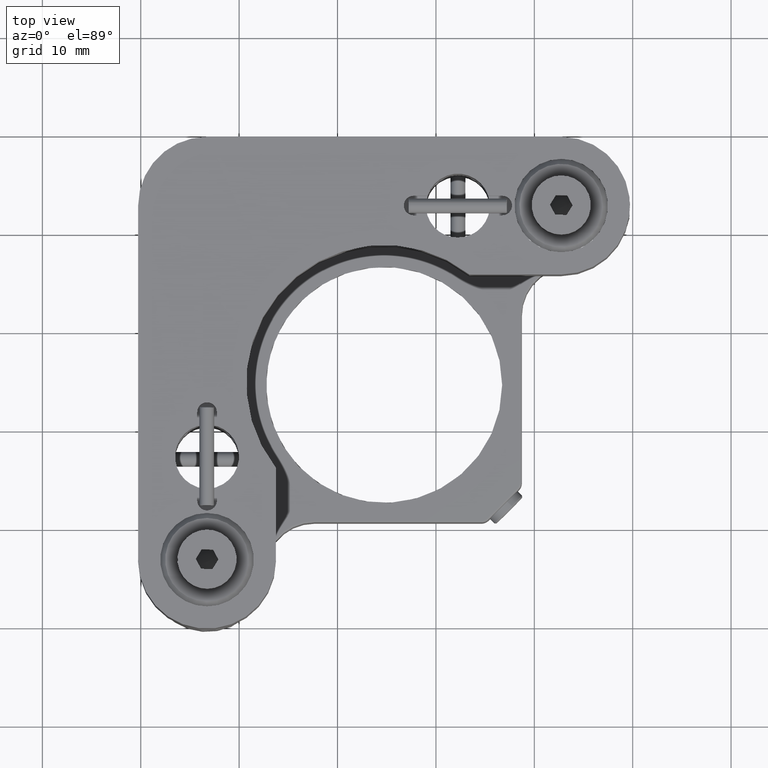
[diagram: clean part render]
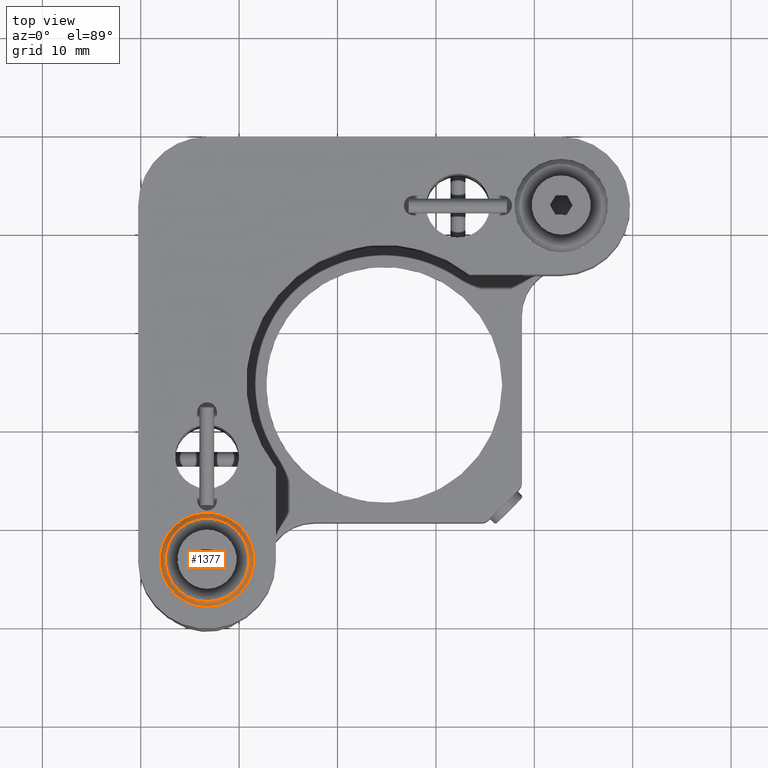
[diagram: same view with one face highlighted and labeled with its STEP entity id]
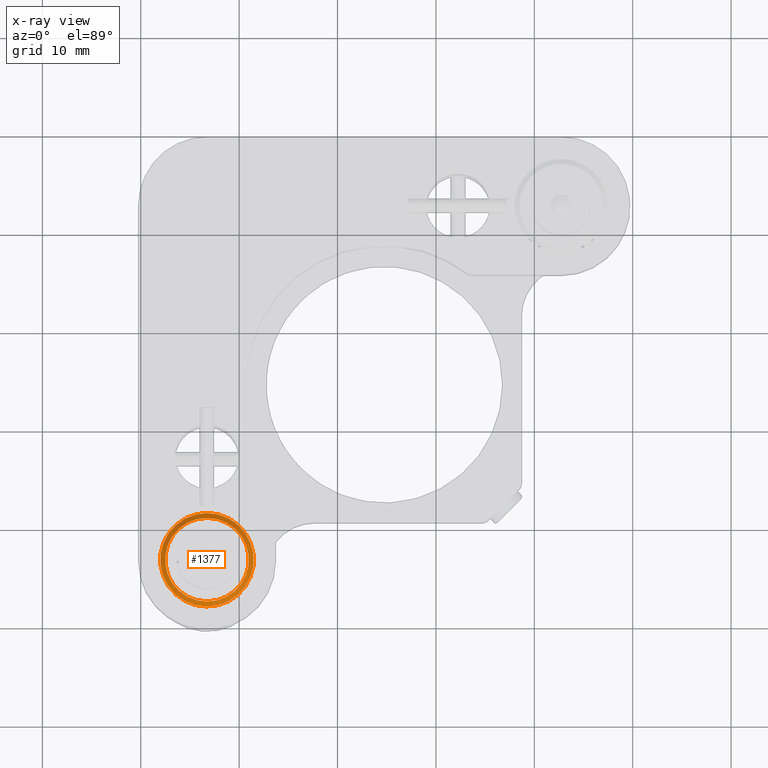
[diagram: x-ray of the same camera — body ghosted, the highlighted face saturated]
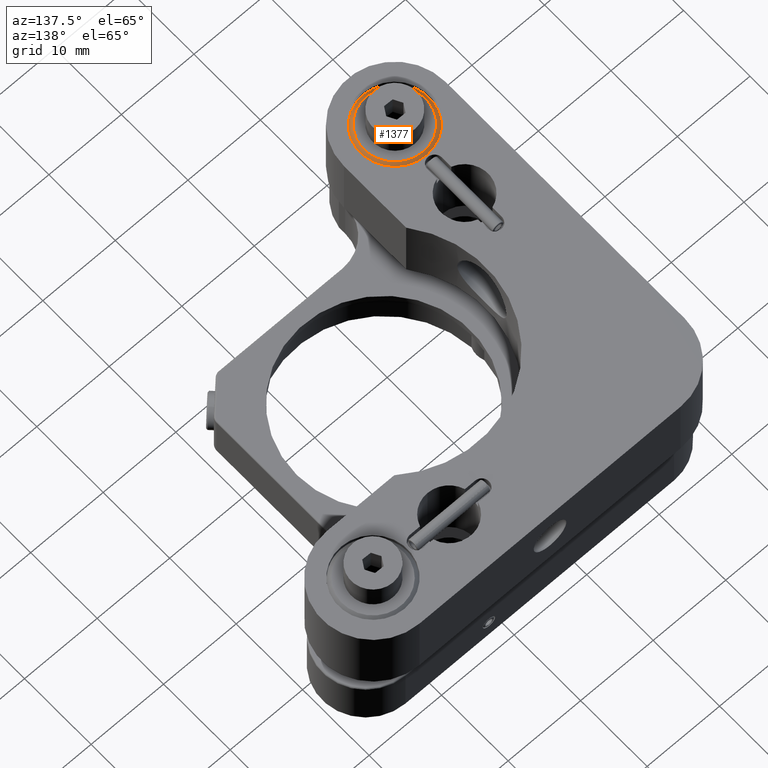
[diagram: same view with one face highlighted and labeled with its STEP entity id]
A machine part, top view. The second image highlights one B-rep face of the part: STEP entity #1377.
The next image is the same camera in x-ray: the body ghosted, the highlighted face saturated — about 0% of this face is hidden behind the body in this view.
A second angle (auxiliary view) of the same face is appended — the face is thin or edge-on in the first view.
In plain terms, the highlighted conical surface has half-angle 45 deg.
Its self-contained STEP definition (entity closure, byte-faithful):
#249 = CARTESIAN_POINT ( 'NONE',  ( 8.674677321840357891, 12.87681211368093948, 41.48193547686144456 ) ) ;
#254 = DIRECTION ( 'NONE',  ( -0.4569945727945836089, 0.8894694825772809788, 0.000000000000000000 ) ) ;
#358 = AXIS2_PLACEMENT_3D ( 'NONE', #4772, #1505, #254 ) ;
#460 = VERTEX_POINT ( 'NONE', #249 ) ;
#523 = EDGE_CURVE ( 'NONE', #814, #814, #4372, .T. ) ;
#643 = CARTESIAN_POINT ( 'NONE',  ( 6.732450387463376984, 16.65705741463438372, 40.98193547686145166 ) ) ;
#669 = ORIENTED_EDGE ( 'NONE', *, *, #2993, .F. ) ;
#814 = VERTEX_POINT ( 'NONE', #2420 ) ;
#973 = DIRECTION ( 'NONE',  ( 0.000000000000000000, 0.000000000000000000, 1.000000000000000000 ) ) ;
#1073 = FACE_BOUND ( 'NONE', #4171, .T. ) ;
#1374 = EDGE_LOOP ( 'NONE', ( #2127 ) ) ;
#1377 = ADVANCED_FACE ( 'NONE', ( #3909, #1073 ), #2091, .T. ) ;
#1505 = DIRECTION ( 'NONE',  ( 0.000000000000000000, 0.000000000000000000, -1.000000000000000000 ) ) ;
#2091 = CONICAL_SURFACE ( 'NONE', #358, 4.250000000000000000, 0.7853981633974439491 ) ;
#2113 = AXIS2_PLACEMENT_3D ( 'NONE', #4696, #973, #2542 ) ;
#2127 = ORIENTED_EDGE ( 'NONE', *, *, #523, .F. ) ;
#2305 = DIRECTION ( 'NONE',  ( -0.000000000000000000, -0.000000000000000000, -1.000000000000000000 ) ) ;
#2420 = CARTESIAN_POINT ( 'NONE',  ( 8.903174608237646837, 12.43207737239230504, 40.98193547686145166 ) ) ;
#2542 = DIRECTION ( 'NONE',  ( 0.4569945727945836089, -0.8894694825772810898, 0.000000000000000000 ) ) ;
#2993 = EDGE_CURVE ( 'NONE', #460, #460, #4185, .T. ) ;
#3420 = AXIS2_PLACEMENT_3D ( 'NONE', #643, #2305, #3540 ) ;
#3540 = DIRECTION ( 'NONE',  ( 0.4569945727945836644, -0.8894694825772810898, 0.000000000000000000 ) ) ;
#3909 = FACE_OUTER_BOUND ( 'NONE', #1374, .T. ) ;
#4171 = EDGE_LOOP ( 'NONE', ( #669 ) ) ;
#4185 = CIRCLE ( 'NONE', #2113, 4.250000000000001776 ) ;
#4372 = CIRCLE ( 'NONE', #3420, 4.749999999999995559 ) ;
#4696 = CARTESIAN_POINT ( 'NONE',  ( 6.732450387463376984, 16.65705741463438372, 41.48193547686144456 ) ) ;
#4772 = CARTESIAN_POINT ( 'NONE',  ( 6.732450387463376984, 16.65705741463438372, 41.48193547686144456 ) ) ;